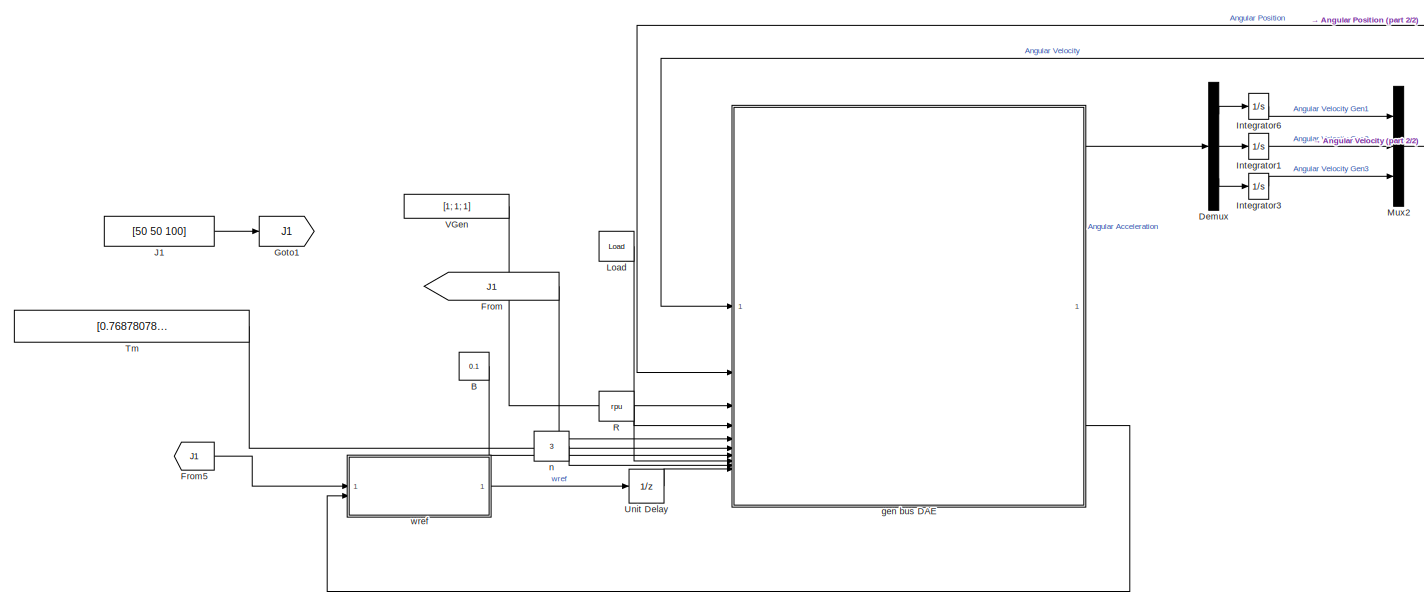
[diagram: root canvas - part 1/2, most of the canvas]
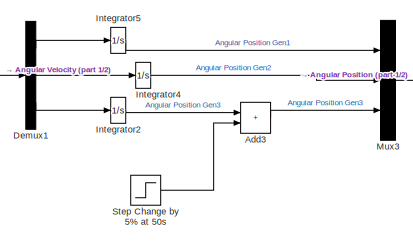
[diagram: root canvas - part 2/2, middle right region]
MODEL slx_2a5362602767
KIND model
CONFIG AbsTol = auto
CONFIG EnableMultiTasking = off
CONFIG FixedStep = auto
CONFIG MaxStep = auto
CONFIG MinStep = auto
CONFIG RelTol = 1e-3
CONFIG SampleTimeConstraint = Unconstrained
CONFIG SolverName = VariableStepAuto
CONFIG StartTime = 0.0
CONFIG StopTime = 100
BLOCK [Sum] Add3
  IconShape = rectangular
BLOCK [Constant] B
  Value = 0.1
BLOCK [Demux] Demux
  Outputs = 3
BLOCK [Demux] Demux1
  Outputs = 3
BLOCK [From] From
  GotoTag = J1
BLOCK [From] From5
  GotoTag = J1
BLOCK [Goto] Goto1
  GotoTag = J1
BLOCK [Integrator] Integrator1
BLOCK [Integrator] Integrator2
  InitialCondition = 0.1019
BLOCK [Integrator] Integrator3
BLOCK [Integrator] Integrator4
  InitialCondition = 0.2385668530558521
BLOCK [Integrator] Integrator5
BLOCK [Integrator] Integrator6
BLOCK [Constant] J1
  Value = [50 50 100]
BLOCK [Constant] Load
  Value = Load
BLOCK [Mux] Mux2
  DisplayOption = bar
  Inputs = 3
BLOCK [Mux] Mux3
  DisplayOption = bar
  Inputs = 3
BLOCK [Constant] R
  Value = rpu
BLOCK [Step] Step Change by 5% at 50s
  After = 0.005
  SampleTime = 0
  Time = 50
BLOCK [Constant] Tm
  Value = [0.76878078175  0    1.05709251331]
BLOCK [UnitDelay] Unit Delay
  HasFrameUpgradeWarning = on
  InitialCondition = 1
  SampleTime = -1
BLOCK [Constant] VGen
  Value = [1; 1; 1]
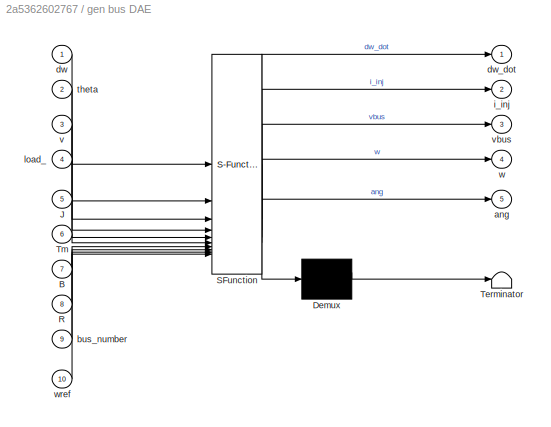
BLOCK [SubSystem] gen bus DAE
  ErrorFcn = Stateflow.Translate.translate
  LibrarySourceBlock = simulink/User-Defined\nFunctions/MATLAB Function
  PermitHierarchicalResolution = ExplicitOnly
  SFBlockType = MATLAB Function
  TreatAsAtomicUnit = on
BLOCK [Demux] gen bus DAE/ Demux 
  Outputs = 1
BLOCK [S-Function] gen bus DAE/ SFunction 
  EnableBusSupport = on
  FunctionName = sf_sfun
  PortCounts = [10 6]
  SFcnIsStateOwnerBlock = off
  SFunctionDeploymentMode = off
  Tag = Stateflow S-Function 1
BLOCK [Terminator] gen bus DAE/ Terminator 
BLOCK [Inport] gen bus DAE/B
  Port = 7
BLOCK [Inport] gen bus DAE/J
  Port = 5
BLOCK [Inport] gen bus DAE/R
  Port = 8
BLOCK [Inport] gen bus DAE/Tm
  Port = 6
BLOCK [Outport] gen bus DAE/ang
  Port = 5
BLOCK [Inport] gen bus DAE/bus_number
  Port = 9
BLOCK [Inport] gen bus DAE/dw
BLOCK [Outport] gen bus DAE/dw_dot
BLOCK [Outport] gen bus DAE/i_inj
  Port = 2
BLOCK [Inport] gen bus DAE/load_
  Port = 4
BLOCK [Inport] gen bus DAE/theta
  Port = 2
BLOCK [Inport] gen bus DAE/v
  Port = 3
BLOCK [Outport] gen bus DAE/vbus
  Port = 3
BLOCK [Outport] gen bus DAE/w
  Port = 4
BLOCK [Inport] gen bus DAE/wref
  Port = 10
BLOCK [Constant] n
  Value = 3
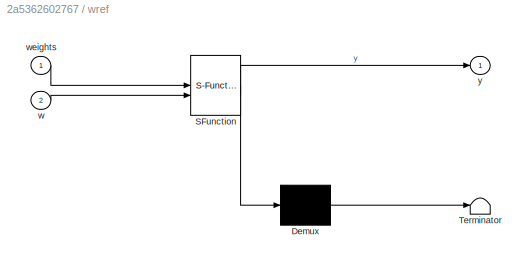
BLOCK [SubSystem] wref
  ErrorFcn = Stateflow.Translate.translate
  LibrarySourceBlock = simulink/User-Defined\nFunctions/MATLAB Function
  PermitHierarchicalResolution = ExplicitOnly
  SFBlockType = MATLAB Function
  TreatAsAtomicUnit = on
BLOCK [Demux] wref/ Demux 
  Outputs = 1
BLOCK [S-Function] wref/ SFunction 
  EnableBusSupport = on
  FunctionName = sf_sfun
  PortCounts = [2 2]
  SFcnIsStateOwnerBlock = off
  SFunctionDeploymentMode = off
  Tag = Stateflow S-Function 2
BLOCK [Terminator] wref/ Terminator 
BLOCK [Inport] wref/w
  Port = 2
BLOCK [Inport] wref/weights
BLOCK [Outport] wref/y
LINE Add3:1 -> Mux3:3
LINE B:1 -> gen bus DAE:7
LINE Demux1:1 -> Integrator5:1
LINE Demux1:2 -> Integrator4:1
LINE Demux1:3 -> Integrator2:1
LINE Demux:1 -> Integrator6:1
LINE Demux:2 -> Integrator1:1
LINE Demux:3 -> Integrator3:1
LINE From5:1 -> wref:1
LINE From:1 -> gen bus DAE:5
LINE Integrator1:1 -> Mux2:2
LINE Integrator2:1 -> Add3:1
LINE Integrator3:1 -> Mux2:3
LINE Integrator4:1 -> Mux3:2
LINE Integrator5:1 -> Mux3:1
LINE Integrator6:1 -> Mux2:1
LINE J1:1 -> Goto1:1
LINE Load:1 -> gen bus DAE:4
NET Mux2:1 -> Demux1:1, gen bus DAE:1
LINE Mux3:1 -> gen bus DAE:2
LINE R:1 -> gen bus DAE:8
LINE Step Change by 5% at 50s:1 -> Add3:2
LINE Tm:1 -> gen bus DAE:6
LINE Unit Delay:1 -> gen bus DAE:10
LINE VGen:1 -> gen bus DAE:3
LINE gen bus DAE:1 -> Demux:1
LINE gen bus DAE:4 -> wref:2
LINE n:1 -> gen bus DAE:9
LINE wref:1 -> Unit Delay:1
note: NET lines group one-source signal fan-out (src -> all destinations, sorted); 1:1 wires keep LINE
CHART gen bus DAE states=1 transitions=1
  STATE_LABEL 'eML_blk_kernel()'
  STATE_LABEL 'SCRIPT:\nfunction [dw_dot, i_inj , vbus, w, ang] = fcn(dw,theta,v,load_,J,Tm,B,R,bus_number,wref)\nn=bus_number;\n% x0 = zeros(2,n);\nw=zeros(3,1);\ndw_dot = zeros(3,1);\nang=[0 0 0];\n% x0(2,1) = load_(1);\n% for j = 2:n\n%     x0(1,j) = v(1);\n%     x0(2,j) = load_(j);\n% end\nw=dw+[wref;wref;wref];\nx0 = [v(1) v(2) v(3);1.05 0 1.01;theta(1) theta(2) theta(3)];\nsol = fsolve(@(x) solving_systems_nbus(x, [v(1)...<+390ch>'
CHART wref states=1 transitions=1
  STATE_LABEL 'eML_blk_kernel()'
  STATE_LABEL 'SCRIPT:\nfunction y = fcn(weights,w)\n    \ny = sum(w.*(weights/sum(weights)));\n'
CHART  states=0 transitions=0
CHART  states=0 transitions=0
